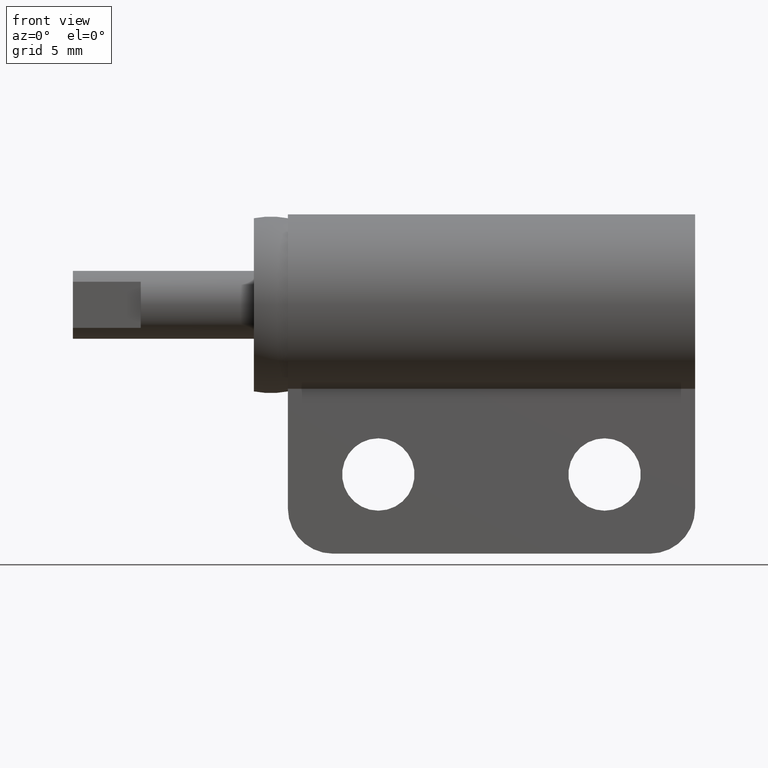
[diagram: clean part render]
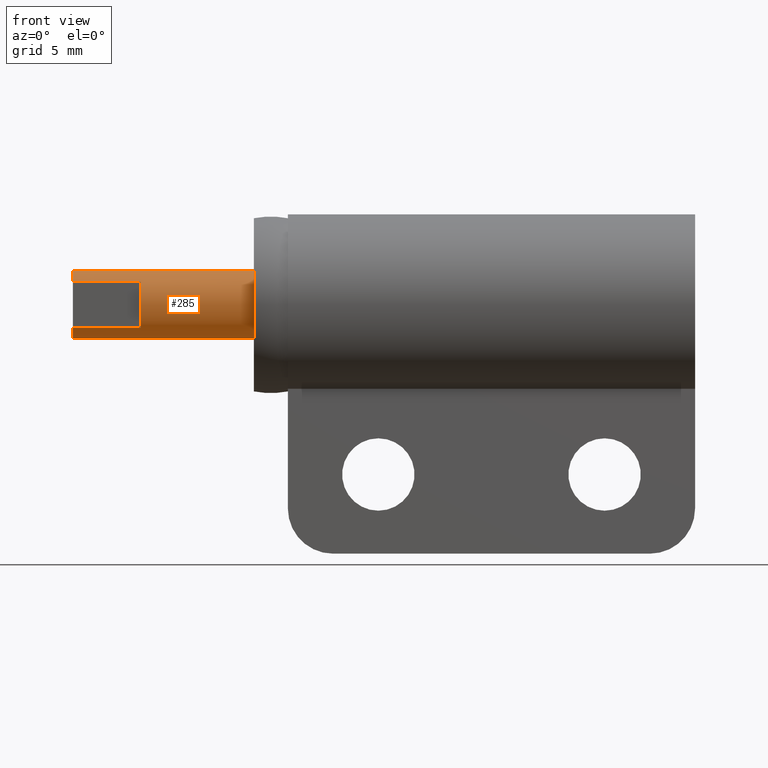
[diagram: same view with one face highlighted and labeled with its STEP entity id]
A machine part, front view. The second image highlights one B-rep face of the part: STEP entity #285.
In plain terms, the highlighted cylindrical surface (edge-blend (fillet) strip) has radius 1.5 mm, axis along (1, 0, 0).
Its self-contained STEP definition (entity closure, byte-faithful):
#285=ADVANCED_FACE('',(#925),#924,.T.);
#924=CYLINDRICAL_SURFACE('',#1329,1.50000800000E+00);
#925=FACE_OUTER_BOUND('',#1330,.T.);
#1326=CARTESIAN_POINT('',(5.80000000000E+00,-3.52240875008E-16,-2.71915783806E-32));
#1327=DIRECTION('',(1.00000000000E+00,-0.00000000000E+00,-0.00000000000E+00));
#1328=DIRECTION('',(-0.00000000000E+00,-2.34825997600E-16,-1.00000000000E+00));
#1329=AXIS2_PLACEMENT_3D('',#1326,#1327,#1328);
#1330=EDGE_LOOP('',(#1641,#1642,#1643,#1644,#1645,#1646,#1647,#1648));
#1641=ORIENTED_EDGE('',*,*,#1804,.T.);
#1642=ORIENTED_EDGE('',*,*,#1801,.F.);
#1643=ORIENTED_EDGE('',*,*,#1794,.T.);
#1644=ORIENTED_EDGE('',*,*,#1803,.F.);
#1645=ORIENTED_EDGE('',*,*,#1807,.T.);
#1646=ORIENTED_EDGE('',*,*,#1808,.T.);
#1647=ORIENTED_EDGE('',*,*,#1796,.T.);
#1648=ORIENTED_EDGE('',*,*,#1809,.F.);
#1794=EDGE_CURVE('',#2669,#2668,#2676,.T.);
#1796=EDGE_CURVE('',#2688,#2689,#2690,.T.);
#1801=EDGE_CURVE('',#2669,#2722,#2723,.T.);
#1803=EDGE_CURVE('',#2729,#2668,#2736,.T.);
#1804=EDGE_CURVE('',#2742,#2722,#2743,.T.);
#1807=EDGE_CURVE('',#2729,#2755,#2762,.T.);
#1808=EDGE_CURVE('',#2755,#2688,#2768,.T.);
#1809=EDGE_CURVE('',#2742,#2689,#2774,.T.);
#2668=VERTEX_POINT('',#3375);
#2669=VERTEX_POINT('',#3376);
#2676=(BOUNDED_CURVE() B_SPLINE_CURVE(3,(#3380,#3381,#3382,#3383,#3384,#3385),.UNSPECIFIED.,.F.,.F.) B_SPLINE_CURVE_WITH_KNOTS((4,2,4),(7.62575280347E-06,5.00000000000E-01,9.99986293704E-01),.UNSPECIFIED.) CURVE() GEOMETRIC_REPRESENTATION_ITEM() RATIONAL_B_SPLINE_CURVE((1.00000000000E+00,1.00000000000E+00,1.00000000000E+00,1.00000000000E+00,1.00000000000E+00,1.00000000000E+00)) REPRESENTATION_ITEM('') );
#2688=VERTEX_POINT('',#3390);
#2689=VERTEX_POINT('',#3391);
#2690=CIRCLE('',#3395,1.50000800000E+00);
#2722=VERTEX_POINT('',#3414);
#2723=LINE('',#3415,#3416);
#2729=VERTEX_POINT('',#3418);
#2736=LINE('',#3422,#3423);
#2742=VERTEX_POINT('',#3425);
#2743=CIRCLE('',#3429,1.50000000000E+00);
#2755=VERTEX_POINT('',#3434);
#2762=CIRCLE('',#3442,1.50000000000E+00);
#2768=(BOUNDED_CURVE() B_SPLINE_CURVE(1,(#3443,#3444),.UNSPECIFIED.,.F.,.F.) B_SPLINE_CURVE_WITH_KNOTS((2,2),(8.33333366442E-02,9.16666667899E-01),.UNSPECIFIED.) CURVE() GEOMETRIC_REPRESENTATION_ITEM() RATIONAL_B_SPLINE_CURVE((1.00000000000E+00,1.00000000000E+00)) REPRESENTATION_ITEM('') );
#2774=(BOUNDED_CURVE() B_SPLINE_CURVE(1,(#3445,#3446),.UNSPECIFIED.,.F.,.F.) B_SPLINE_CURVE_WITH_KNOTS((2,2),(8.33333333333E-02,9.16666666667E-01),.UNSPECIFIED.) CURVE() GEOMETRIC_REPRESENTATION_ITEM() RATIONAL_B_SPLINE_CURVE((7.50000000000E-01,7.50000000000E-01)) REPRESENTATION_ITEM('') );
#3375=CARTESIAN_POINT('',(0.00000000000E+00,-1.09999800000E+00,-1.01980605999E+00));
#3376=CARTESIAN_POINT('',(0.00000000000E+00,-1.09999800000E+00,1.01979800000E+00));
#3380=CARTESIAN_POINT('',(0.00000000000E+00,-1.10000788516E+00,1.01980716443E+00));
#3381=CARTESIAN_POINT('',(0.00000000000E+00,-1.35413987578E+00,7.45689189311E-01));
#3382=CARTESIAN_POINT('',(0.00000000000E+00,-1.50001043564E+00,3.73786662660E-01));
#3383=CARTESIAN_POINT('',(0.00000000000E+00,-1.50000556433E+00,-3.73801665038E-01));
#3384=CARTESIAN_POINT('',(0.00000000000E+00,-1.35413370582E+00,-7.45697790932E-01));
#3385=CARTESIAN_POINT('',(0.00000000000E+00,-1.10000386665E+00,-1.01981149894E+00));
#3390=CARTESIAN_POINT('',(5.00000000000E+00,-7.40148683083E-17,-1.50000800000E+00));
#3391=CARTESIAN_POINT('',(5.00000000000E+00,0.00000000000E+00,1.50000800000E+00));
#3392=CARTESIAN_POINT('',(5.00000000000E+00,0.00000000000E+00,0.00000000000E+00));
#3393=DIRECTION('',(-1.00000000000E+00,0.00000000000E+00,0.00000000000E+00));
#3394=DIRECTION('',(0.00000000000E+00,-1.22460635382E-16,1.00000000000E+00));
#3395=AXIS2_PLACEMENT_3D('',#3392,#3393,#3394);
#3414=CARTESIAN_POINT('',(-3.00000000000E+00,-1.09999800000E+00,1.01979800000E+00));
#3415=CARTESIAN_POINT('',(0.00000000000E+00,-1.09999800000E+00,1.01979800000E+00));
#3416=VECTOR('',#3417,3.00000000000E+00);
#3417=DIRECTION('',(-1.00000000000E+00,0.00000000000E+00,0.00000000000E+00));
#3418=CARTESIAN_POINT('',(-3.00000000000E+00,-1.09999800000E+00,-1.01980605999E+00));
#3422=CARTESIAN_POINT('',(-3.00000000000E+00,-1.09999800000E+00,-1.01980605999E+00));
#3423=VECTOR('',#3424,3.00000000000E+00);
#3424=DIRECTION('',(1.00000000000E+00,0.00000000000E+00,0.00000000000E+00));
#3425=CARTESIAN_POINT('',(-3.00000000000E+00,-3.58207026923E-08,1.50000000000E+00));
#3426=CARTESIAN_POINT('',(-3.00000000000E+00,0.00000000000E+00,0.00000000000E+00));
#3427=DIRECTION('',(1.00000000000E+00,0.00000000000E+00,-0.00000000000E+00));
#3428=DIRECTION('',(-0.00000000000E+00,-7.33334678989E-01,-6.79867817000E-01));
#3429=AXIS2_PLACEMENT_3D('',#3426,#3427,#3428);
#3434=CARTESIAN_POINT('',(-3.00000000000E+00,-1.18102455733E-13,-1.50000000000E+00));
#3439=CARTESIAN_POINT('',(-3.00000000000E+00,0.00000000000E+00,0.00000000000E+00));
#3440=DIRECTION('',(1.00000000000E+00,0.00000000000E+00,0.00000000000E+00));
#3441=DIRECTION('',(-0.00000000000E+00,-1.22460635382E-16,1.00000000000E+00));
#3442=AXIS2_PLACEMENT_3D('',#3439,#3440,#3441);
#3443=CARTESIAN_POINT('',(-2.99999996822E+00,-7.04481750015E-16,-1.50000800000E+00));
#3444=CARTESIAN_POINT('',(5.00000001183E+00,-7.04481750015E-16,-1.50000800000E+00));
#3445=CARTESIAN_POINT('',(-3.00000000000E+00,-1.48029736617E-16,1.50000800000E+00));
#3446=CARTESIAN_POINT('',(5.00000000000E+00,-1.48029736617E-16,1.50000800000E+00));